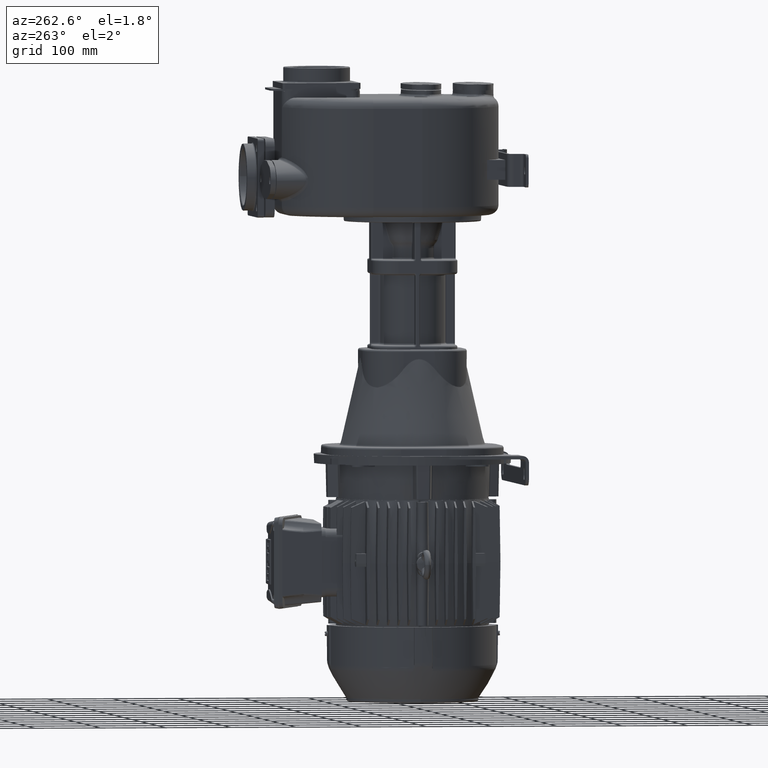
[diagram: clean part render]
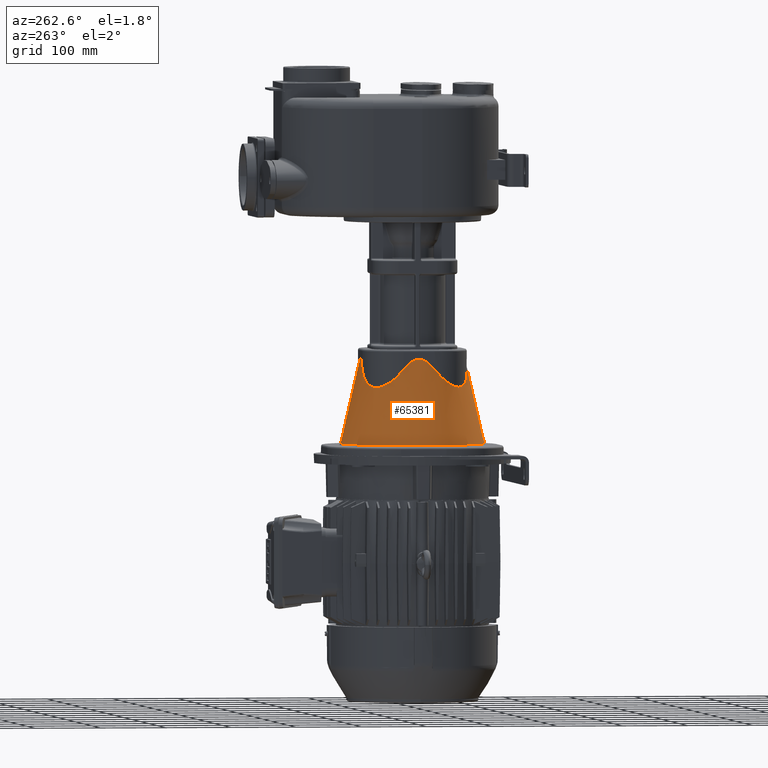
[diagram: same view with one face highlighted and labeled with its STEP entity id]
A machine part, auxiliary view. The second image highlights one B-rep face of the part: STEP entity #65381.
In plain terms, the highlighted conical surface has half-angle 13 deg.
Its self-contained STEP definition (entity closure, byte-faithful):
#14302=CARTESIAN_POINT('',(0.E0,1.31E2,-4.181748531630E2));
#14303=DIRECTION('',(0.E0,0.E0,1.E0));
#14304=DIRECTION('',(0.E0,1.E0,0.E0));
#14305=AXIS2_PLACEMENT_3D('',#14302,#14303,#14304);
#14327=CARTESIAN_POINT('',(-2.318802712144E1,2.111919271283E2,
-3.026535035421E2));
#14328=CARTESIAN_POINT('',(-2.180633220248E1,2.111790510158E2,
-3.009374916227E2));
#14329=CARTESIAN_POINT('',(-1.906343796353E1,2.111552339211E2,
-2.978101776302E2));
#14330=CARTESIAN_POINT('',(-1.498616142257E1,2.111256569213E2,
-2.940150663950E2));
#14331=CARTESIAN_POINT('',(-1.097893877389E1,2.111028656764E2,
-2.911436956508E2));
#14332=CARTESIAN_POINT('',(-7.089638785462E0,2.110872400454E2,
-2.892010610423E2));
#14333=CARTESIAN_POINT('',(-3.464336483120E0,2.110786761128E2,
-2.881449832094E2));
#14334=CARTESIAN_POINT('',(-1.137407797675E0,2.110768898767E2,
-2.879254835196E2));
#14335=CARTESIAN_POINT('',(2.263036701735E-14,2.110768898049E2,
-2.879254829145E2));
#14337=CARTESIAN_POINT('',(-8.019192712830E1,1.541880271214E2,
-3.026535035421E2));
#14338=CARTESIAN_POINT('',(-8.021516123413E1,1.566812370020E2,
-3.057499724789E2));
#14339=CARTESIAN_POINT('',(-7.992884203166E1,1.616038646647E2,
-3.113760811493E2));
#14340=CARTESIAN_POINT('',(-7.861117166914E1,1.685881649373E2,
-3.181137393297E2));
#14341=CARTESIAN_POINT('',(-7.653710100157E1,1.750732438943E2,
-3.232771871593E2));
#14342=CARTESIAN_POINT('',(-7.386832462359E1,1.809336675463E2,
-3.269707323511E2));
#14343=CARTESIAN_POINT('',(-7.080879872559E1,1.860730682501E2,
-3.293593191236E2));
#14344=CARTESIAN_POINT('',(-6.742600346300E1,1.906270158942E2,
-3.306981497944E2));
#14345=CARTESIAN_POINT('',(-6.371527616688E1,1.947152605741E2,
-3.311287662984E2));
#14346=CARTESIAN_POINT('',(-5.962702780441E1,1.984259940010E2,
-3.306981525881E2));
#14347=CARTESIAN_POINT('',(-5.507307751751E1,2.018087926553E2,
-3.293593227882E2));
#14348=CARTESIAN_POINT('',(-4.993367583643E1,2.048683203107E2,
-3.269707369327E2));
#14349=CARTESIAN_POINT('',(-4.407325229924E1,2.075370978384E2,
-3.232771932606E2));
#14350=CARTESIAN_POINT('',(-3.758817074926E1,2.096111703032E2,
-3.181137445830E2));
#14351=CARTESIAN_POINT('',(-3.060386899882E1,2.109288416015E2,
-3.113760858467E2));
#14352=CARTESIAN_POINT('',(-2.568123849521E1,2.112151612655E2,
-3.057499743696E2));
#14353=CARTESIAN_POINT('',(-2.318802712144E1,2.111919271283E2,
-3.026535035421E2));
#14355=CARTESIAN_POINT('',(-8.019192712832E1,1.078119728786E2,
-3.026535035420E2));
#14356=CARTESIAN_POINT('',(-8.017786900102E1,1.093205057820E2,
-3.007799637081E2));
#14357=CARTESIAN_POINT('',(-8.015206787536E1,1.123121991606E2,
-2.973971943674E2));
#14358=CARTESIAN_POINT('',(-8.012075011506E1,1.167548113215E2,
-2.933912368072E2));
#14359=CARTESIAN_POINT('',(-8.009762619830E1,1.211076297077E2,
-2.904891981551E2));
#14360=CARTESIAN_POINT('',(-8.008312807446E1,1.252792636642E2,
-2.886930147558E2));
#14361=CARTESIAN_POINT('',(-8.007661846145E1,1.291276076749E2,
-2.878920775099E2));
#14362=CARTESIAN_POINT('',(-8.007661846128E1,1.328723921162E2,
-2.878920774907E2));
#14363=CARTESIAN_POINT('',(-8.008312807385E1,1.367207360954E2,
-2.886930146772E2));
#14364=CARTESIAN_POINT('',(-8.009762619746E1,1.408923701266E2,
-2.904891980573E2));
#14365=CARTESIAN_POINT('',(-8.012075011459E1,1.452451885672E2,
-2.933912367172E2));
#14366=CARTESIAN_POINT('',(-8.015206787473E1,1.496878007936E2,
-2.973971943119E2));
#14367=CARTESIAN_POINT('',(-8.017786900261E1,1.526794941941E2,
-3.007799636950E2));
#14368=CARTESIAN_POINT('',(-8.019192712830E1,1.541880271214E2,
-3.026535035421E2));
#14370=CARTESIAN_POINT('',(-2.318802712143E1,5.080807287171E1,
-3.026535035420E2));
#14371=CARTESIAN_POINT('',(-2.568123789841E1,5.078483875853E1,
-3.057499735902E2));
#14372=CARTESIAN_POINT('',(-3.060386718915E1,5.107115824217E1,
-3.113760838567E2));
#14373=CARTESIAN_POINT('',(-3.758816742723E1,5.238882892515E1,
-3.181137415682E2));
#14374=CARTESIAN_POINT('',(-4.407324791812E1,5.446290050102E1,
-3.232771900949E2));
#14375=CARTESIAN_POINT('',(-4.993367116140E1,5.713167729960E1,
-3.269707342985E2));
#14376=CARTESIAN_POINT('',(-5.507307131796E1,6.019120330807E1,
-3.293593203090E2));
#14377=CARTESIAN_POINT('',(-5.962701889723E1,6.357399903091E1,
-3.306981503742E2));
#14378=CARTESIAN_POINT('',(-6.371526264573E1,6.728472590414E1,
-3.311287662992E2));
#14379=CARTESIAN_POINT('',(-6.742599650636E1,7.137297521270E1,
-3.306981520054E2));
#14380=CARTESIAN_POINT('',(-7.080879468320E1,7.592692554455E1,
-3.293593216028E2));
#14381=CARTESIAN_POINT('',(-7.386832221140E1,8.106632773628E1,
-3.269707350082E2));
#14382=CARTESIAN_POINT('',(-7.653709933099E1,8.692675169674E1,
-3.232771903457E2));
#14383=CARTESIAN_POINT('',(-7.861117089077E1,9.341183171403E1,
-3.181137423680E2));
#14384=CARTESIAN_POINT('',(-7.992884187400E1,1.003961335082E2,
-3.113760831589E2));
#14385=CARTESIAN_POINT('',(-8.021516125795E1,1.053187623945E2,
-3.057499732657E2));
#14386=CARTESIAN_POINT('',(-8.019192712832E1,1.078119728786E2,
-3.026535035420E2));
#14388=CARTESIAN_POINT('',(-1.761229732533E-14,5.092311019507E1,
-2.879254829145E2));
#14389=CARTESIAN_POINT('',(-1.137407734284E0,5.092311010866E1,
-2.879254836424E2));
#14390=CARTESIAN_POINT('',(-3.464336321397E0,5.092132389564E1,
-2.881449831160E2));
#14391=CARTESIAN_POINT('',(-7.089638662860E0,5.091275995212E1,
-2.892010610140E2));
#14392=CARTESIAN_POINT('',(-1.097893857678E1,5.089713432523E1,
-2.911436955303E2));
#14393=CARTESIAN_POINT('',(-1.498616124347E1,5.087434307827E1,
-2.940150662480E2));
#14394=CARTESIAN_POINT('',(-1.906343791695E1,5.084476608165E1,
-2.978101775619E2));
#14395=CARTESIAN_POINT('',(-2.180633217821E1,5.082094898301E1,
-3.009374916057E2));
#14396=CARTESIAN_POINT('',(-2.318802712143E1,5.080807287171E1,
-3.026535035420E2));
#14398=DIRECTION('',(0.E0,2.249510543491E-1,9.743700647840E-1));
#14399=VECTOR('',#14398,1.336754637237E2);
#14400=CARTESIAN_POINT('',(-2.595496776807E-14,2.085267368980E1,
-4.181748531630E2));
#14401=LINE('',#14400,#14399);
#14410=CARTESIAN_POINT('',(-1.761229732533E-14,5.092311019507E1,
-2.879254829145E2));
#14473=DIRECTION('',(0.E0,-2.249510543492E-1,9.743700647840E-1));
#14474=VECTOR('',#14473,1.336754637237E2);
#14475=CARTESIAN_POINT('',(4.096273557721E-14,2.411473263102E2,
-4.181748531630E2));
#14476=LINE('',#14475,#14474);
#14477=CARTESIAN_POINT('',(0.E0,1.31E2,-4.181748531630E2));
#14478=DIRECTION('',(0.E0,0.E0,1.E0));
#14479=DIRECTION('',(-1.768808949384E-1,-9.842322637497E-1,0.E0));
#14480=AXIS2_PLACEMENT_3D('',#14477,#14478,#14479);
#36743=VERTEX_POINT('',#14327);
#36744=VERTEX_POINT('',#14335);
#36754=VERTEX_POINT('',#14410);
#36756=VERTEX_POINT('',#14396);
#36759=VERTEX_POINT('',#14355);
#36760=VERTEX_POINT('',#14368);
#36761=CARTESIAN_POINT('',(4.096273557721E-14,2.411473263102E2,
-4.181748531630E2));
#36762=VERTEX_POINT('',#36761);
#36769=CARTESIAN_POINT('',(-1.948295765282E1,2.258944767974E1,
-4.181748531630E2));
#36770=VERTEX_POINT('',#36769);
#36771=CARTESIAN_POINT('',(-4.166280533388E-14,2.085267368980E1,
-4.181748531630E2));
#36772=VERTEX_POINT('',#36771);
#65357=CARTESIAN_POINT('',(0.E0,1.31E2,-3.530325026854E2));
#65358=DIRECTION('',(0.E0,0.E0,-1.E0));
#65359=DIRECTION('',(0.E0,-1.E0,0.E0));
#65360=AXIS2_PLACEMENT_3D('',#65357,#65358,#65359);
#65361=CONICAL_SURFACE('',#65360,9.510802968977E1,1.3E1);
#65363=ORIENTED_EDGE('',*,*,#65362,.F.);
#65365=ORIENTED_EDGE('',*,*,#65364,.F.);
#65366=ORIENTED_EDGE('',*,*,#65345,.F.);
#65368=ORIENTED_EDGE('',*,*,#65367,.T.);
#65370=ORIENTED_EDGE('',*,*,#65369,.F.);
#65372=ORIENTED_EDGE('',*,*,#65371,.F.);
#65374=ORIENTED_EDGE('',*,*,#65373,.F.);
#65376=ORIENTED_EDGE('',*,*,#65375,.F.);
#65378=ORIENTED_EDGE('',*,*,#65377,.F.);
#65379=EDGE_LOOP('',(#65363,#65365,#65366,#65368,#65370,#65372,#65374,#65376,
#65378));
#65380=FACE_OUTER_BOUND('',#65379,.F.);
#65381=ADVANCED_FACE('',(#65380),#65361,.T.);
#14306=CIRCLE('',#14305,1.101473263102E2);
#14336=B_SPLINE_CURVE_WITH_KNOTS('',3,(#14327,#14328,#14329,#14330,#14331,
#14332,#14333,#14334,#14335),.UNSPECIFIED.,.F.,.F.,(4,1,1,1,1,1,4),(0.E0,
1.666666666667E-1,3.333333333333E-1,5.E-1,6.666666666667E-1,8.333333333333E-1,
1.E0),.UNSPECIFIED.);
#14354=B_SPLINE_CURVE_WITH_KNOTS('',3,(#14337,#14338,#14339,#14340,#14341,
#14342,#14343,#14344,#14345,#14346,#14347,#14348,#14349,#14350,#14351,#14352,
#14353),.UNSPECIFIED.,.F.,.F.,(4,1,1,1,1,1,1,1,1,1,1,1,1,1,4),(0.E0,
7.142857142857E-2,1.428571428571E-1,2.142857142857E-1,2.857142857143E-1,
3.571428571429E-1,4.285714285714E-1,5.E-1,5.714285714286E-1,6.428571428571E-1,
7.142857142857E-1,7.857142857143E-1,8.571428571429E-1,9.285714285714E-1,1.E0),
.UNSPECIFIED.);
#14369=B_SPLINE_CURVE_WITH_KNOTS('',3,(#14355,#14356,#14357,#14358,#14359,
#14360,#14361,#14362,#14363,#14364,#14365,#14366,#14367,#14368),.UNSPECIFIED.,
.F.,.F.,(4,1,1,1,1,1,1,1,1,1,1,4),(0.E0,9.090909090909E-2,1.818181818182E-1,
2.727272727273E-1,3.636363636364E-1,4.545454545455E-1,5.454545454545E-1,
6.363636363636E-1,7.272727272727E-1,8.181818181818E-1,9.090909090909E-1,1.E0),
.UNSPECIFIED.);
#14387=B_SPLINE_CURVE_WITH_KNOTS('',3,(#14370,#14371,#14372,#14373,#14374,
#14375,#14376,#14377,#14378,#14379,#14380,#14381,#14382,#14383,#14384,#14385,
#14386),.UNSPECIFIED.,.F.,.F.,(4,1,1,1,1,1,1,1,1,1,1,1,1,1,4),(0.E0,
7.142857142857E-2,1.428571428571E-1,2.142857142857E-1,2.857142857143E-1,
3.571428571429E-1,4.285714285714E-1,5.E-1,5.714285714286E-1,6.428571428571E-1,
7.142857142857E-1,7.857142857143E-1,8.571428571429E-1,9.285714285714E-1,1.E0),
.UNSPECIFIED.);
#14397=B_SPLINE_CURVE_WITH_KNOTS('',3,(#14388,#14389,#14390,#14391,#14392,
#14393,#14394,#14395,#14396),.UNSPECIFIED.,.F.,.F.,(4,1,1,1,1,1,4),(0.E0,
1.666666666667E-1,3.333333333333E-1,5.E-1,6.666666666667E-1,8.333333333333E-1,
1.E0),.UNSPECIFIED.);
#14481=CIRCLE('',#14480,1.101473263102E2);
#65345=EDGE_CURVE('',#36762,#36770,#14306,.T.);
#65362=EDGE_CURVE('',#36772,#36754,#14401,.T.);
#65364=EDGE_CURVE('',#36770,#36772,#14481,.T.);
#65367=EDGE_CURVE('',#36762,#36744,#14476,.T.);
#65369=EDGE_CURVE('',#36743,#36744,#14336,.T.);
#65371=EDGE_CURVE('',#36760,#36743,#14354,.T.);
#65373=EDGE_CURVE('',#36759,#36760,#14369,.T.);
#65375=EDGE_CURVE('',#36756,#36759,#14387,.T.);
#65377=EDGE_CURVE('',#36754,#36756,#14397,.T.);